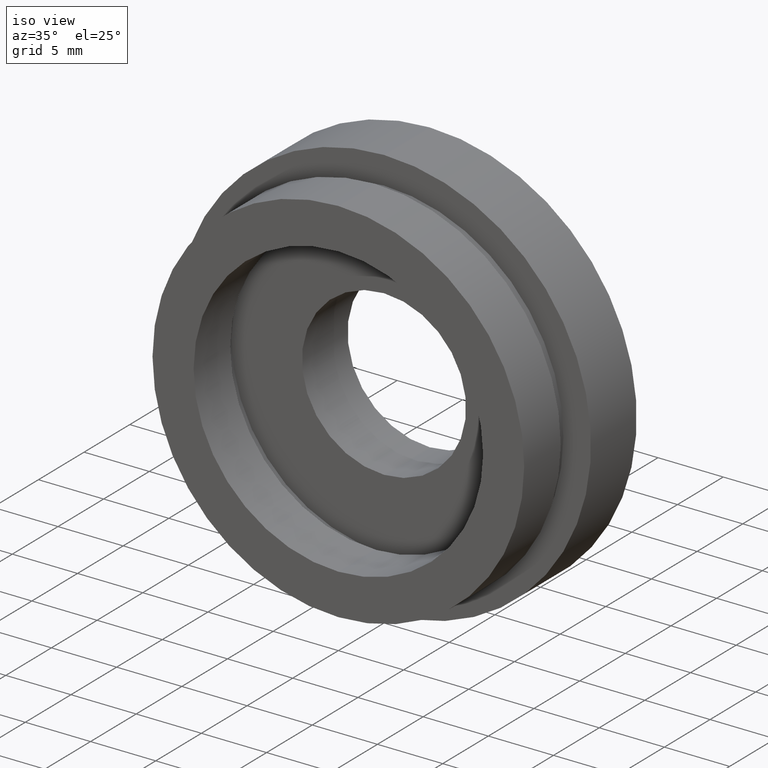
[diagram: clean part render]
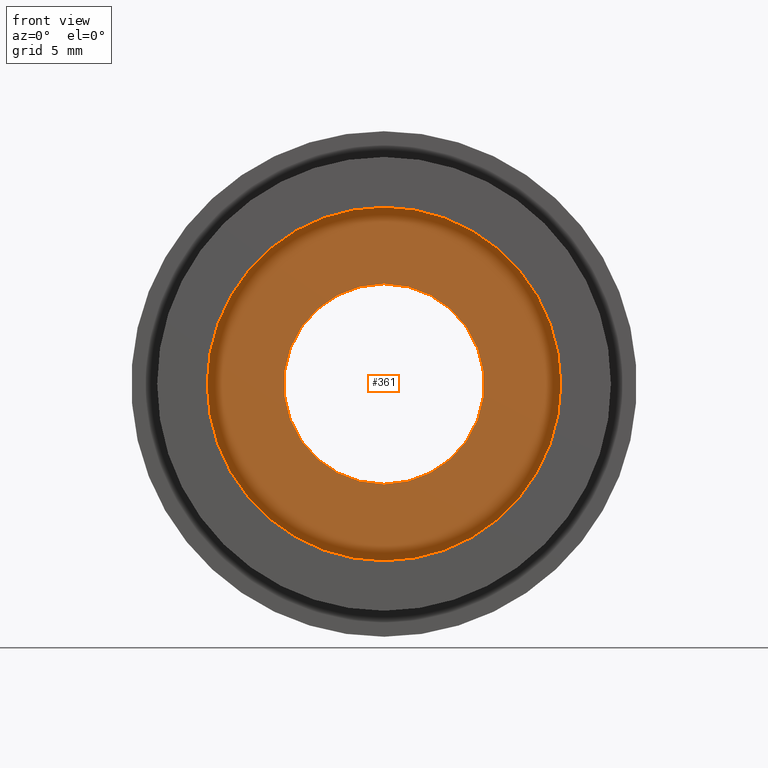
[diagram: tour spotlight — one face highlighted and labeled with its STEP entity id]
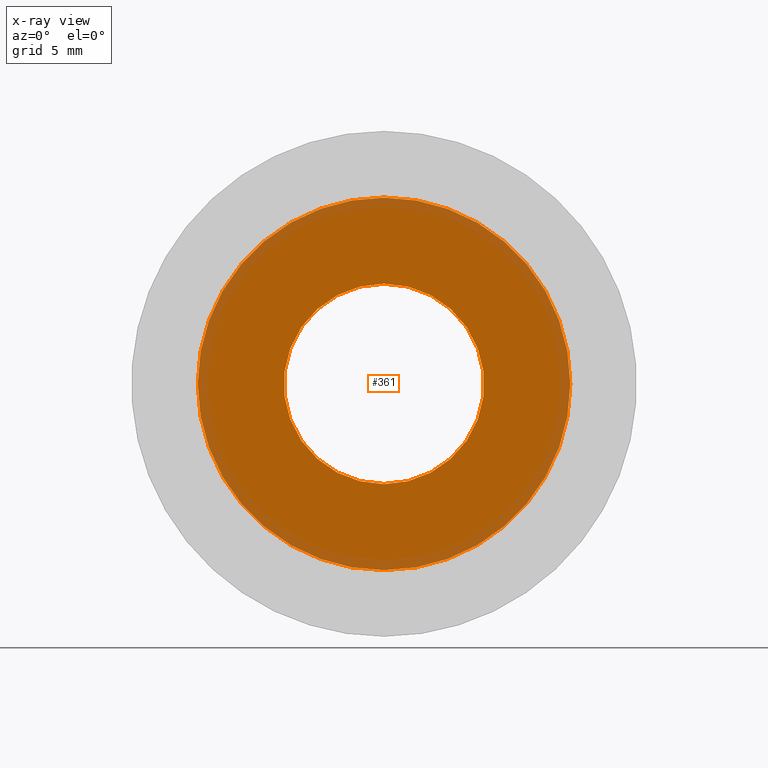
[diagram: x-ray of the same camera — body ghosted, this tour face saturated]
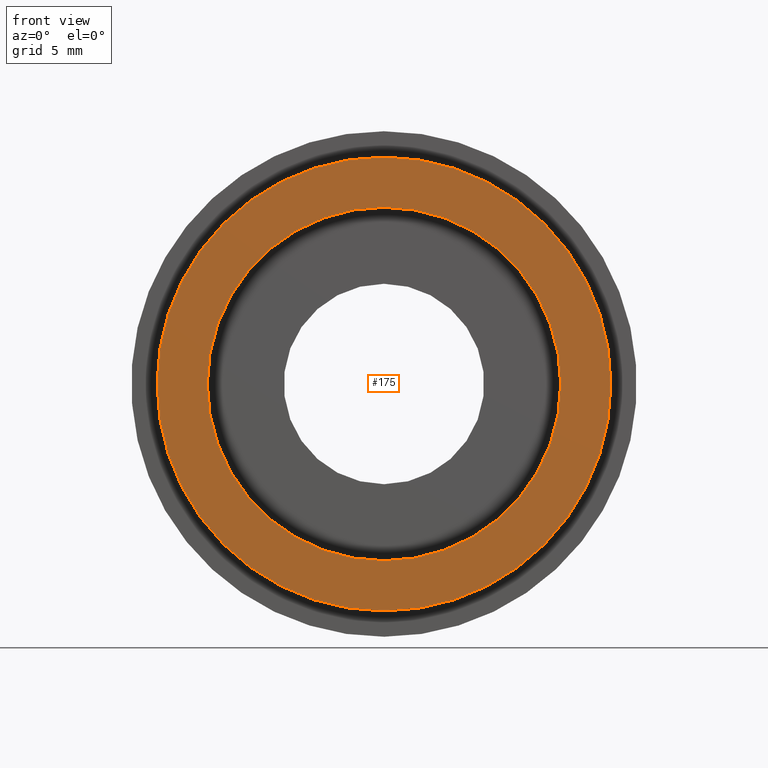
[diagram: tour spotlight — one face highlighted and labeled with its STEP entity id]
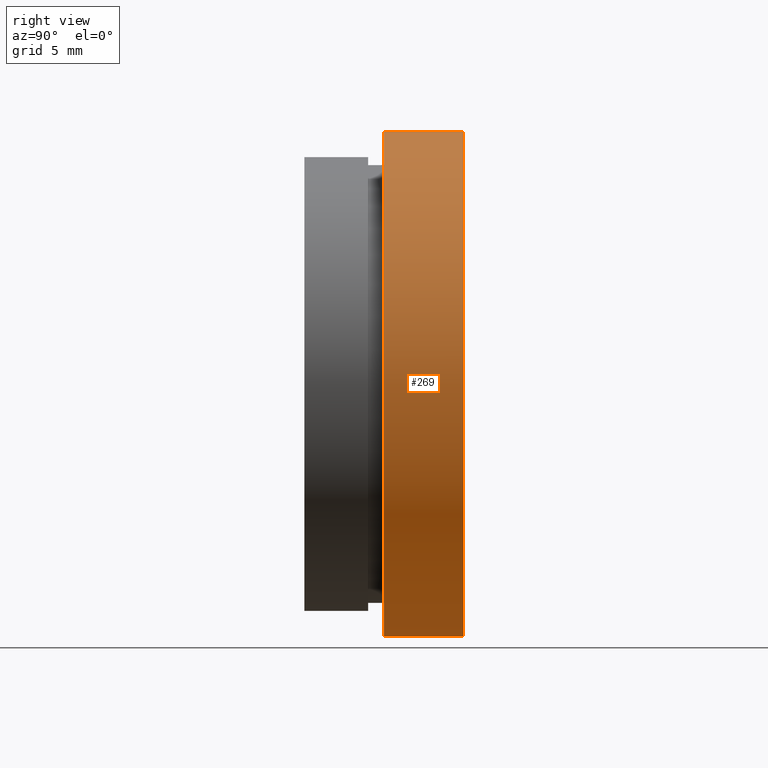
[diagram: tour spotlight — one face highlighted and labeled with its STEP entity id]
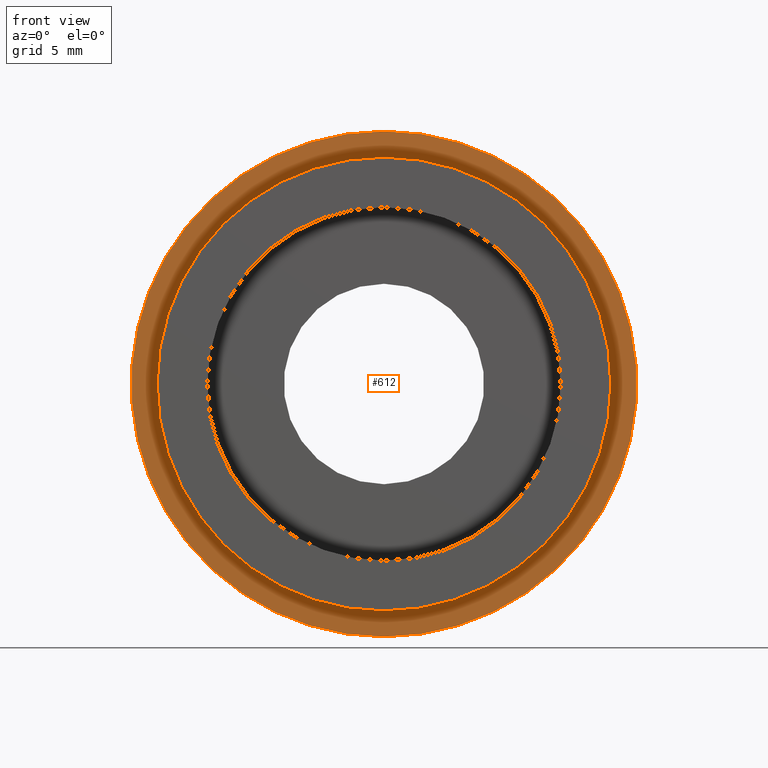
[diagram: tour spotlight — one face highlighted and labeled with its STEP entity id]
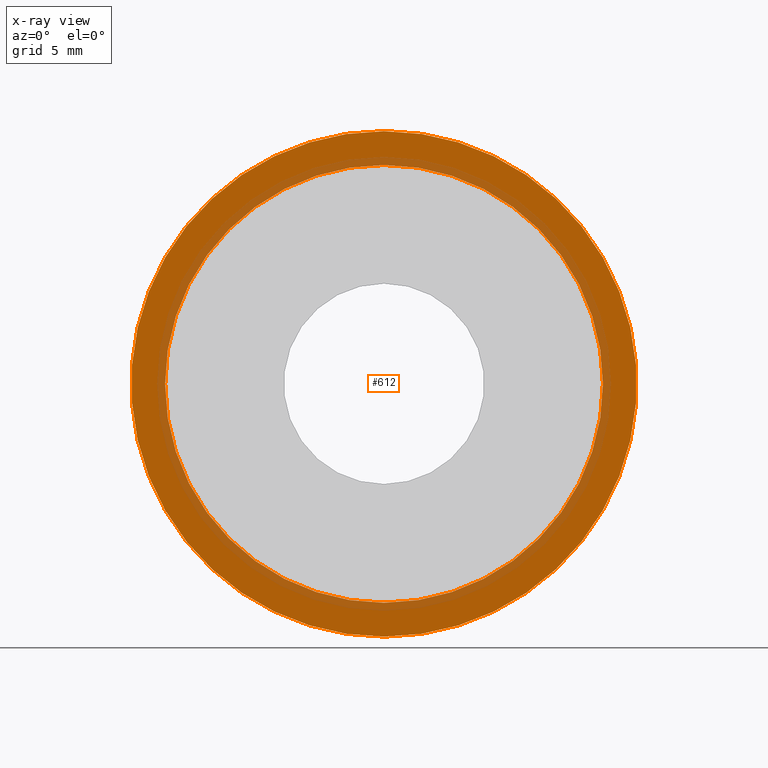
[diagram: x-ray of the same camera — body ghosted, this tour face saturated]
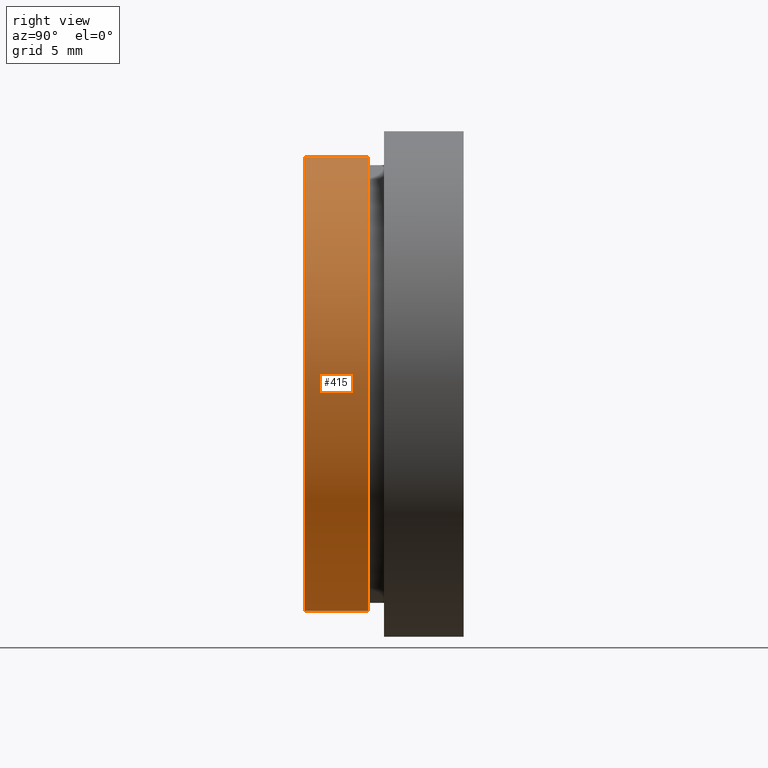
[diagram: tour spotlight — one face highlighted and labeled with its STEP entity id]
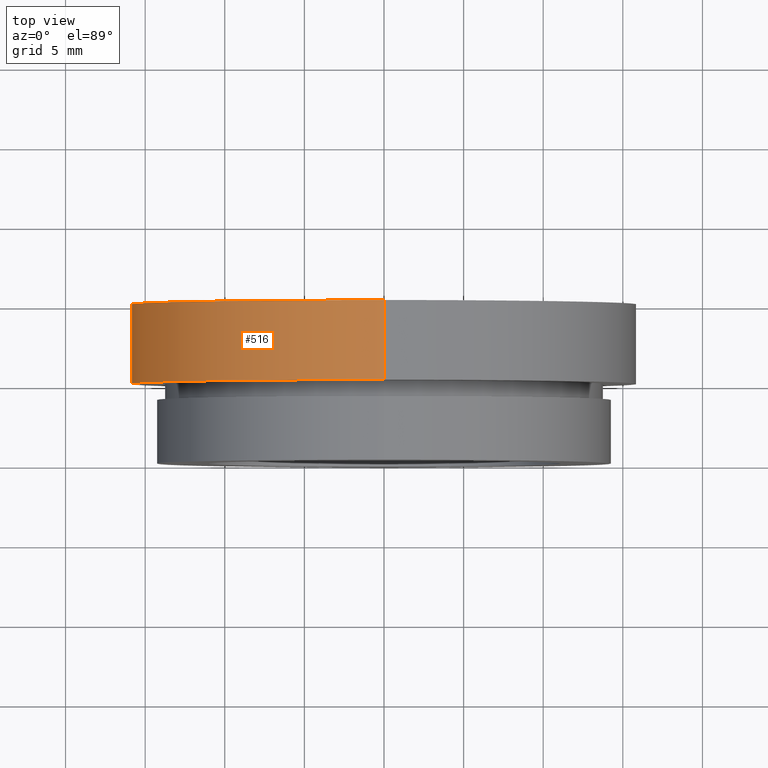
[diagram: tour spotlight — one face highlighted and labeled with its STEP entity id]
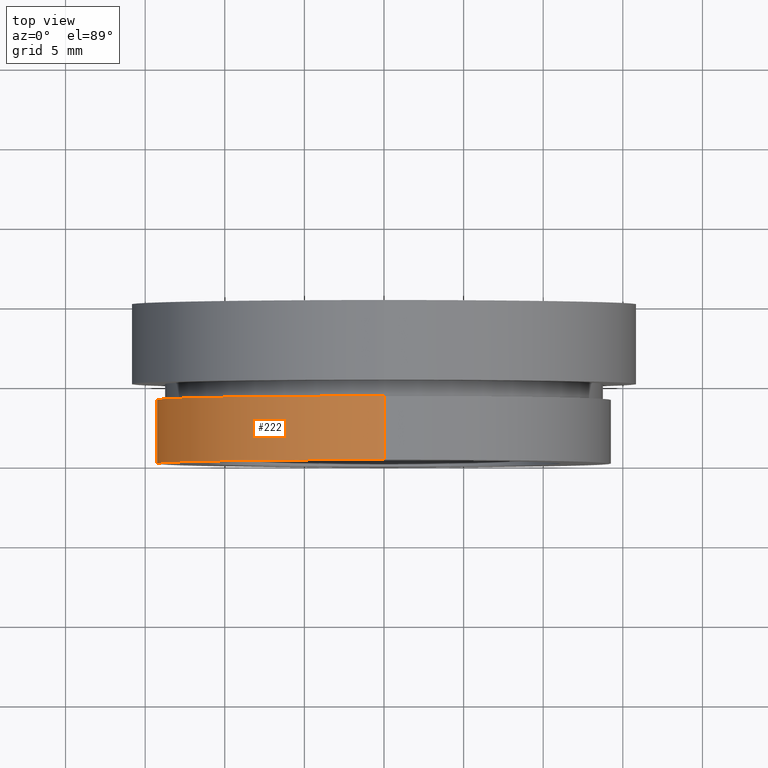
[diagram: tour spotlight — one face highlighted and labeled with its STEP entity id]
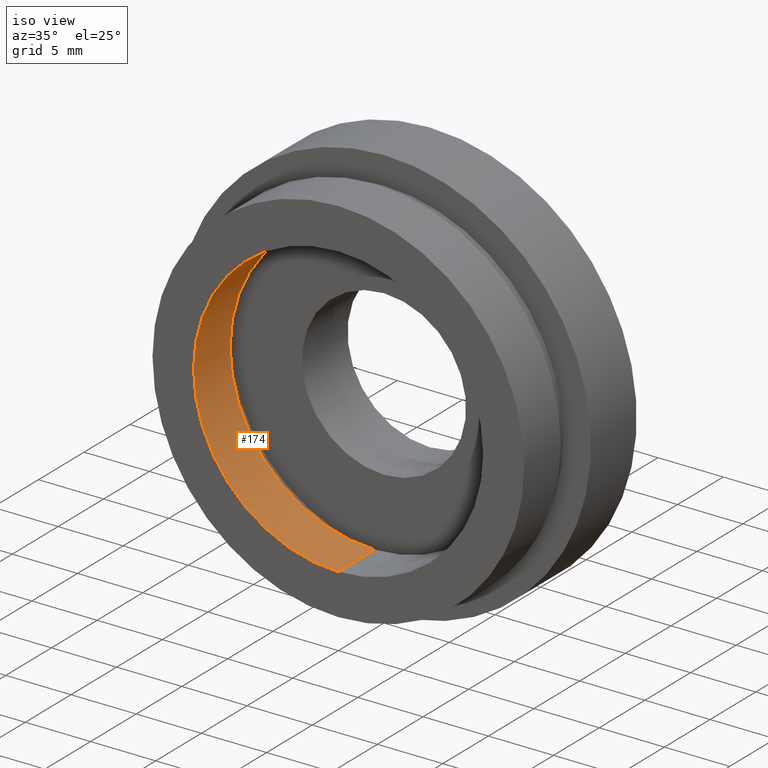
[diagram: tour spotlight — one face highlighted and labeled with its STEP entity id]
A machine part: a face-by-face anatomy tour. The part has 18 B-rep faces; the first image is the clean iso view, then the 8 largest visible faces are spotlighted one at a time (largest first), each with its STEP entity span.

Face 1 — front view, entity #361. An x-ray twin of the same camera follows (body ghosted, this face saturated) — the face is partly hidden behind the body. In plain terms, the highlighted planar face has unit normal (-0, 1, 0).
Definition (entity closure, byte-faithful):
#3 = CIRCLE ( 'NONE', #111, 11.70000000000000100 ) ;
#5 = DIRECTION ( 'NONE',  ( -0.0000000000000000000, 1.000000000000000000, -0.0000000000000000000 ) ) ;
#14 = DIRECTION ( 'NONE',  ( 0.0000000000000000000, 0.0000000000000000000, 1.000000000000000000 ) ) ;
#42 = CARTESIAN_POINT ( 'NONE',  ( 0.0000000000000000000, 5.000000000000000900, 11.70000000000000100 ) ) ;
#44 = EDGE_CURVE ( 'NONE', #279, #412, #99, .T. ) ;
#51 = DIRECTION ( 'NONE',  ( -0.0000000000000000000, 1.000000000000000000, 0.0000000000000000000 ) ) ;
#62 = CARTESIAN_POINT ( 'NONE',  ( 0.0000000000000000000, 5.000000000000000900, 0.0000000000000000000 ) ) ;
#66 = CARTESIAN_POINT ( 'NONE',  ( 1.432836755002403300E-015, 5.000000000000000900, -11.70000000000000100 ) ) ;
#74 = CARTESIAN_POINT ( 'NONE',  ( 7.709151600632590500E-016, 4.999999999999999100, -6.295000000000001700 ) ) ;
#76 = FACE_BOUND ( 'NONE', #288, .T. ) ;
#83 = AXIS2_PLACEMENT_3D ( 'NONE', #494, #156, #445 ) ;
#99 = CIRCLE ( 'NONE', #287, 11.70000000000000100 ) ;
#101 = CARTESIAN_POINT ( 'NONE',  ( 11.70000000000000100, 4.999999999999999100, 0.0000000000000000000 ) ) ;
#111 = AXIS2_PLACEMENT_3D ( 'NONE', #62, #343, #14 ) ;
#146 = VERTEX_POINT ( 'NONE', #326 ) ;
#156 = DIRECTION ( 'NONE',  ( -0.0000000000000000000, 1.000000000000000000, -0.0000000000000000000 ) ) ;
#178 = VERTEX_POINT ( 'NONE', #74 ) ;
#180 = DIRECTION ( 'NONE',  ( -0.0000000000000000000, 1.000000000000000000, -0.0000000000000000000 ) ) ;
#228 = EDGE_CURVE ( 'NONE', #178, #146, #254, .T. ) ;
#232 = DIRECTION ( 'NONE',  ( 0.0000000000000000000, 0.0000000000000000000, 1.000000000000000000 ) ) ;
#254 = CIRCLE ( 'NONE', #83, 6.295000000000001700 ) ;
#279 = VERTEX_POINT ( 'NONE', #66 ) ;
#286 = CARTESIAN_POINT ( 'NONE',  ( 0.0000000000000000000, 5.000000000000000900, 0.0000000000000000000 ) ) ;
#287 = AXIS2_PLACEMENT_3D ( 'NONE', #286, #5, #327 ) ;
#288 = EDGE_LOOP ( 'NONE', ( #342, #347 ) ) ;
#289 = CIRCLE ( 'NONE', #527, 6.295000000000001700 ) ;
#300 = EDGE_CURVE ( 'NONE', #412, #279, #3, .T. ) ;
#304 = FACE_OUTER_BOUND ( 'NONE', #451, .T. ) ;
#326 = CARTESIAN_POINT ( 'NONE',  ( 0.0000000000000000000, 4.999999999999999100, 6.295000000000001700 ) ) ;
#327 = DIRECTION ( 'NONE',  ( 0.0000000000000000000, 0.0000000000000000000, 1.000000000000000000 ) ) ;
#342 = ORIENTED_EDGE ( 'NONE', *, *, #371, .T. ) ;
#343 = DIRECTION ( 'NONE',  ( -0.0000000000000000000, 1.000000000000000000, -0.0000000000000000000 ) ) ;
#347 = ORIENTED_EDGE ( 'NONE', *, *, #228, .T. ) ;
#361 = ADVANCED_FACE ( 'NONE', ( #304, #76 ), #623, .F. ) ;
#371 = EDGE_CURVE ( 'NONE', #146, #178, #289, .T. ) ;
#412 = VERTEX_POINT ( 'NONE', #42 ) ;
#445 = DIRECTION ( 'NONE',  ( 0.0000000000000000000, 0.0000000000000000000, 1.000000000000000000 ) ) ;
#451 = EDGE_LOOP ( 'NONE', ( #466, #525 ) ) ;
#459 = AXIS2_PLACEMENT_3D ( 'NONE', #101, #51, #232 ) ;
#466 = ORIENTED_EDGE ( 'NONE', *, *, #300, .F. ) ;
#494 = CARTESIAN_POINT ( 'NONE',  ( 0.0000000000000000000, 4.999999999999999100, 0.0000000000000000000 ) ) ;
#519 = DIRECTION ( 'NONE',  ( 0.0000000000000000000, 0.0000000000000000000, 1.000000000000000000 ) ) ;
#525 = ORIENTED_EDGE ( 'NONE', *, *, #44, .F. ) ;
#527 = AXIS2_PLACEMENT_3D ( 'NONE', #567, #180, #519 ) ;
#567 = CARTESIAN_POINT ( 'NONE',  ( 0.0000000000000000000, 4.999999999999999100, 0.0000000000000000000 ) ) ;
#623 = PLANE ( 'NONE',  #459 ) ;

Face 2 — front view, entity #175. In plain terms, the highlighted planar face has unit normal (-0, 1, 0).
Definition (entity closure, byte-faithful):
#12 = DIRECTION ( 'NONE',  ( -0.0000000000000000000, 1.000000000000000000, -0.0000000000000000000 ) ) ;
#23 = CARTESIAN_POINT ( 'NONE',  ( 0.0000000000000000000, 0.0000000000000000000, 11.10000000000000100 ) ) ;
#24 = PLANE ( 'NONE',  #408 ) ;
#38 = EDGE_CURVE ( 'NONE', #225, #554, #499, .T. ) ;
#52 = DIRECTION ( 'NONE',  ( -0.0000000000000000000, 1.000000000000000000, -0.0000000000000000000 ) ) ;
#65 = EDGE_LOOP ( 'NONE', ( #609, #508 ) ) ;
#95 = CIRCLE ( 'NONE', #619, 11.10000000000000100 ) ;
#126 = CARTESIAN_POINT ( 'NONE',  ( 0.0000000000000000000, 0.0000000000000000000, 0.0000000000000000000 ) ) ;
#133 = EDGE_CURVE ( 'NONE', #213, #280, #95, .T. ) ;
#143 = ORIENTED_EDGE ( 'NONE', *, *, #600, .T. ) ;
#144 = DIRECTION ( 'NONE',  ( 0.0000000000000000000, 0.0000000000000000000, 1.000000000000000000 ) ) ;
#175 = ADVANCED_FACE ( 'NONE', ( #457, #574 ), #24, .F. ) ;
#190 = DIRECTION ( 'NONE',  ( -0.0000000000000000000, 1.000000000000000000, -0.0000000000000000000 ) ) ;
#195 = CIRCLE ( 'NONE', #359, 14.25000000000000000 ) ;
#213 = VERTEX_POINT ( 'NONE', #23 ) ;
#225 = VERTEX_POINT ( 'NONE', #253 ) ;
#253 = CARTESIAN_POINT ( 'NONE',  ( 0.0000000000000000000, 0.0000000000000000000, 14.25000000000000000 ) ) ;
#280 = VERTEX_POINT ( 'NONE', #585 ) ;
#283 = CARTESIAN_POINT ( 'NONE',  ( 0.0000000000000000000, 0.0000000000000000000, 0.0000000000000000000 ) ) ;
#290 = CARTESIAN_POINT ( 'NONE',  ( 0.0000000000000000000, 0.0000000000000000000, 0.0000000000000000000 ) ) ;
#321 = AXIS2_PLACEMENT_3D ( 'NONE', #529, #52, #575 ) ;
#330 = EDGE_CURVE ( 'NONE', #554, #225, #195, .T. ) ;
#341 = DIRECTION ( 'NONE',  ( 0.0000000000000000000, 0.0000000000000000000, 1.000000000000000000 ) ) ;
#352 = DIRECTION ( 'NONE',  ( -0.0000000000000000000, 1.000000000000000000, 0.0000000000000000000 ) ) ;
#359 = AXIS2_PLACEMENT_3D ( 'NONE', #126, #190, #483 ) ;
#374 = ORIENTED_EDGE ( 'NONE', *, *, #133, .T. ) ;
#401 = CARTESIAN_POINT ( 'NONE',  ( 14.25000000000000000, -3.918869757271531000E-016, 0.0000000000000000000 ) ) ;
#408 = AXIS2_PLACEMENT_3D ( 'NONE', #401, #352, #598 ) ;
#429 = CIRCLE ( 'NONE', #578, 11.10000000000000100 ) ;
#457 = FACE_OUTER_BOUND ( 'NONE', #65, .T. ) ;
#483 = DIRECTION ( 'NONE',  ( 0.0000000000000000000, 0.0000000000000000000, 1.000000000000000000 ) ) ;
#490 = EDGE_LOOP ( 'NONE', ( #374, #143 ) ) ;
#499 = CIRCLE ( 'NONE', #321, 14.25000000000000000 ) ;
#508 = ORIENTED_EDGE ( 'NONE', *, *, #330, .F. ) ;
#522 = CARTESIAN_POINT ( 'NONE',  ( 1.745121688784978200E-015, 0.0000000000000000000, -14.25000000000000000 ) ) ;
#529 = CARTESIAN_POINT ( 'NONE',  ( 0.0000000000000000000, 0.0000000000000000000, 0.0000000000000000000 ) ) ;
#554 = VERTEX_POINT ( 'NONE', #522 ) ;
#574 = FACE_BOUND ( 'NONE', #490, .T. ) ;
#575 = DIRECTION ( 'NONE',  ( 0.0000000000000000000, 0.0000000000000000000, 1.000000000000000000 ) ) ;
#576 = DIRECTION ( 'NONE',  ( -0.0000000000000000000, 1.000000000000000000, -0.0000000000000000000 ) ) ;
#578 = AXIS2_PLACEMENT_3D ( 'NONE', #290, #12, #341 ) ;
#585 = CARTESIAN_POINT ( 'NONE',  ( 1.359357947053562400E-015, 0.0000000000000000000, -11.10000000000000100 ) ) ;
#598 = DIRECTION ( 'NONE',  ( 0.0000000000000000000, 0.0000000000000000000, 1.000000000000000000 ) ) ;
#600 = EDGE_CURVE ( 'NONE', #280, #213, #429, .T. ) ;
#609 = ORIENTED_EDGE ( 'NONE', *, *, #38, .F. ) ;
#619 = AXIS2_PLACEMENT_3D ( 'NONE', #283, #576, #144 ) ;

Face 3 — right view, entity #269. In plain terms, the highlighted cylindrical surface (partial cylindrical patch) has radius 15.875 mm, axis along (-0, 1, -0).
Definition (entity closure, byte-faithful):
#1 = AXIS2_PLACEMENT_3D ( 'NONE', #564, #272, #518 ) ;
#18 = DIRECTION ( 'NONE',  ( -0.0000000000000000000, 1.000000000000000000, -0.0000000000000000000 ) ) ;
#56 = DIRECTION ( 'NONE',  ( -0.0000000000000000000, 1.000000000000000000, -0.0000000000000000000 ) ) ;
#58 = CIRCLE ( 'NONE', #1, 15.87500000000000000 ) ;
#70 = CARTESIAN_POINT ( 'NONE',  ( 1.944126793646423200E-015, 10.00000000000000000, -15.87500000000000000 ) ) ;
#93 = CIRCLE ( 'NONE', #315, 15.87500000000000000 ) ;
#100 = EDGE_CURVE ( 'NONE', #571, #183, #469, .T. ) ;
#145 = FACE_OUTER_BOUND ( 'NONE', #433, .T. ) ;
#147 = DIRECTION ( 'NONE',  ( -0.0000000000000000000, 1.000000000000000000, -0.0000000000000000000 ) ) ;
#158 = ORIENTED_EDGE ( 'NONE', *, *, #100, .F. ) ;
#163 = EDGE_CURVE ( 'NONE', #624, #259, #390, .T. ) ;
#172 = AXIS2_PLACEMENT_3D ( 'NONE', #544, #18, #206 ) ;
#183 = VERTEX_POINT ( 'NONE', #212 ) ;
#206 = DIRECTION ( 'NONE',  ( 0.0000000000000000000, 0.0000000000000000000, 1.000000000000000000 ) ) ;
#212 = CARTESIAN_POINT ( 'NONE',  ( 0.0000000000000000000, 10.00000000000000000, 15.87500000000000000 ) ) ;
#249 = VECTOR ( 'NONE', #56, 1000.000000000000000 ) ;
#259 = VERTEX_POINT ( 'NONE', #70 ) ;
#262 = VECTOR ( 'NONE', #147, 1000.000000000000000 ) ;
#264 = ORIENTED_EDGE ( 'NONE', *, *, #502, .F. ) ;
#269 = ADVANCED_FACE ( 'NONE', ( #145 ), #366, .T. ) ;
#272 = DIRECTION ( 'NONE',  ( -0.0000000000000000000, 1.000000000000000000, -0.0000000000000000000 ) ) ;
#284 = CARTESIAN_POINT ( 'NONE',  ( 0.0000000000000000000, 13.74468085106383300, 15.87500000000000000 ) ) ;
#292 = CARTESIAN_POINT ( 'NONE',  ( 1.944126793646423200E-015, 5.000000000000000900, -15.87500000000000000 ) ) ;
#315 = AXIS2_PLACEMENT_3D ( 'NONE', #376, #524, #570 ) ;
#366 = CYLINDRICAL_SURFACE ( 'NONE', #172, 15.87500000000000000 ) ;
#376 = CARTESIAN_POINT ( 'NONE',  ( 0.0000000000000000000, 10.00000000000000000, 0.0000000000000000000 ) ) ;
#390 = LINE ( 'NONE', #507, #262 ) ;
#403 = EDGE_CURVE ( 'NONE', #571, #624, #58, .T. ) ;
#433 = EDGE_LOOP ( 'NONE', ( #473, #594, #264, #158 ) ) ;
#469 = LINE ( 'NONE', #284, #249 ) ;
#473 = ORIENTED_EDGE ( 'NONE', *, *, #403, .T. ) ;
#502 = EDGE_CURVE ( 'NONE', #183, #259, #93, .T. ) ;
#507 = CARTESIAN_POINT ( 'NONE',  ( 1.944126793646423200E-015, 13.74468085106383300, -15.87500000000000000 ) ) ;
#518 = DIRECTION ( 'NONE',  ( 0.0000000000000000000, 0.0000000000000000000, 1.000000000000000000 ) ) ;
#524 = DIRECTION ( 'NONE',  ( -0.0000000000000000000, 1.000000000000000000, -0.0000000000000000000 ) ) ;
#544 = CARTESIAN_POINT ( 'NONE',  ( 0.0000000000000000000, 13.74468085106383300, 0.0000000000000000000 ) ) ;
#564 = CARTESIAN_POINT ( 'NONE',  ( 0.0000000000000000000, 5.000000000000000900, 0.0000000000000000000 ) ) ;
#569 = CARTESIAN_POINT ( 'NONE',  ( 0.0000000000000000000, 5.000000000000000900, 15.87500000000000000 ) ) ;
#570 = DIRECTION ( 'NONE',  ( 0.0000000000000000000, 0.0000000000000000000, 1.000000000000000000 ) ) ;
#571 = VERTEX_POINT ( 'NONE', #569 ) ;
#594 = ORIENTED_EDGE ( 'NONE', *, *, #163, .T. ) ;
#624 = VERTEX_POINT ( 'NONE', #292 ) ;

Face 4 — front view, entity #612. An x-ray twin of the same camera follows (body ghosted, this face saturated) — the face is partly hidden behind the body. In plain terms, the highlighted planar face has unit normal (-0, 1, 0).
Definition (entity closure, byte-faithful):
#1 = AXIS2_PLACEMENT_3D ( 'NONE', #564, #272, #518 ) ;
#7 = DIRECTION ( 'NONE',  ( -0.0000000000000000000, 1.000000000000000000, -0.0000000000000000000 ) ) ;
#10 = CARTESIAN_POINT ( 'NONE',  ( 0.0000000000000000000, 5.000000000000000900, 13.75000000000000000 ) ) ;
#27 = VERTEX_POINT ( 'NONE', #10 ) ;
#58 = CIRCLE ( 'NONE', #1, 15.87500000000000000 ) ;
#64 = DIRECTION ( 'NONE',  ( 0.0000000000000000000, 0.0000000000000000000, 1.000000000000000000 ) ) ;
#78 = EDGE_CURVE ( 'NONE', #624, #571, #337, .T. ) ;
#98 = DIRECTION ( 'NONE',  ( -0.0000000000000000000, 1.000000000000000000, -0.0000000000000000000 ) ) ;
#136 = EDGE_CURVE ( 'NONE', #526, #27, #461, .T. ) ;
#211 = ORIENTED_EDGE ( 'NONE', *, *, #136, .T. ) ;
#215 = AXIS2_PLACEMENT_3D ( 'NONE', #583, #240, #64 ) ;
#229 = EDGE_LOOP ( 'NONE', ( #582, #211 ) ) ;
#240 = DIRECTION ( 'NONE',  ( -0.0000000000000000000, 1.000000000000000000, 0.0000000000000000000 ) ) ;
#272 = DIRECTION ( 'NONE',  ( -0.0000000000000000000, 1.000000000000000000, -0.0000000000000000000 ) ) ;
#273 = ORIENTED_EDGE ( 'NONE', *, *, #403, .F. ) ;
#276 = ORIENTED_EDGE ( 'NONE', *, *, #78, .F. ) ;
#285 = DIRECTION ( 'NONE',  ( 0.0000000000000000000, 0.0000000000000000000, 1.000000000000000000 ) ) ;
#292 = CARTESIAN_POINT ( 'NONE',  ( 1.944126793646423200E-015, 5.000000000000000900, -15.87500000000000000 ) ) ;
#305 = DIRECTION ( 'NONE',  ( -0.0000000000000000000, 1.000000000000000000, -0.0000000000000000000 ) ) ;
#333 = CARTESIAN_POINT ( 'NONE',  ( 0.0000000000000000000, 5.000000000000000900, 0.0000000000000000000 ) ) ;
#334 = DIRECTION ( 'NONE',  ( 0.0000000000000000000, 0.0000000000000000000, 1.000000000000000000 ) ) ;
#337 = CIRCLE ( 'NONE', #386, 15.87500000000000000 ) ;
#345 = PLANE ( 'NONE',  #215 ) ;
#364 = FACE_BOUND ( 'NONE', #229, .T. ) ;
#382 = AXIS2_PLACEMENT_3D ( 'NONE', #333, #7, #285 ) ;
#386 = AXIS2_PLACEMENT_3D ( 'NONE', #484, #98, #334 ) ;
#398 = DIRECTION ( 'NONE',  ( 0.0000000000000000000, 0.0000000000000000000, 1.000000000000000000 ) ) ;
#402 = EDGE_LOOP ( 'NONE', ( #273, #276 ) ) ;
#403 = EDGE_CURVE ( 'NONE', #571, #624, #58, .T. ) ;
#461 = CIRCLE ( 'NONE', #579, 13.75000000000000000 ) ;
#471 = CARTESIAN_POINT ( 'NONE',  ( 1.683889348827610700E-015, 5.000000000000000900, -13.75000000000000000 ) ) ;
#484 = CARTESIAN_POINT ( 'NONE',  ( 0.0000000000000000000, 5.000000000000000900, 0.0000000000000000000 ) ) ;
#497 = FACE_OUTER_BOUND ( 'NONE', #402, .T. ) ;
#518 = DIRECTION ( 'NONE',  ( 0.0000000000000000000, 0.0000000000000000000, 1.000000000000000000 ) ) ;
#526 = VERTEX_POINT ( 'NONE', #471 ) ;
#555 = CARTESIAN_POINT ( 'NONE',  ( 0.0000000000000000000, 5.000000000000000900, 0.0000000000000000000 ) ) ;
#557 = CIRCLE ( 'NONE', #382, 13.75000000000000000 ) ;
#564 = CARTESIAN_POINT ( 'NONE',  ( 0.0000000000000000000, 5.000000000000000900, 0.0000000000000000000 ) ) ;
#568 = EDGE_CURVE ( 'NONE', #27, #526, #557, .T. ) ;
#569 = CARTESIAN_POINT ( 'NONE',  ( 0.0000000000000000000, 5.000000000000000900, 15.87500000000000000 ) ) ;
#571 = VERTEX_POINT ( 'NONE', #569 ) ;
#579 = AXIS2_PLACEMENT_3D ( 'NONE', #555, #305, #398 ) ;
#582 = ORIENTED_EDGE ( 'NONE', *, *, #568, .T. ) ;
#583 = CARTESIAN_POINT ( 'NONE',  ( 15.87500000000000000, 5.000000000000000000, 0.0000000000000000000 ) ) ;
#612 = ADVANCED_FACE ( 'NONE', ( #497, #364 ), #345, .F. ) ;
#624 = VERTEX_POINT ( 'NONE', #292 ) ;

Face 5 — right view, entity #415. In plain terms, the highlighted cylindrical surface (partial cylindrical patch) has radius 14.25 mm, axis along (-0, 1, -0).
Definition (entity closure, byte-faithful):
#19 = VERTEX_POINT ( 'NONE', #339 ) ;
#35 = DIRECTION ( 'NONE',  ( -0.0000000000000000000, 1.000000000000000000, -0.0000000000000000000 ) ) ;
#38 = EDGE_CURVE ( 'NONE', #225, #554, #499, .T. ) ;
#52 = DIRECTION ( 'NONE',  ( -0.0000000000000000000, 1.000000000000000000, -0.0000000000000000000 ) ) ;
#54 = EDGE_LOOP ( 'NONE', ( #309, #97, #496, #521 ) ) ;
#67 = VECTOR ( 'NONE', #422, 1000.000000000000000 ) ;
#90 = DIRECTION ( 'NONE',  ( 0.0000000000000000000, 0.0000000000000000000, 1.000000000000000000 ) ) ;
#97 = ORIENTED_EDGE ( 'NONE', *, *, #532, .T. ) ;
#134 = CARTESIAN_POINT ( 'NONE',  ( 1.745121688784978200E-015, 13.74468085106383300, -14.25000000000000000 ) ) ;
#166 = FACE_OUTER_BOUND ( 'NONE', #54, .T. ) ;
#219 = LINE ( 'NONE', #424, #491 ) ;
#225 = VERTEX_POINT ( 'NONE', #253 ) ;
#227 = CARTESIAN_POINT ( 'NONE',  ( 1.745121688784978200E-015, 4.000000000000000000, -14.25000000000000000 ) ) ;
#253 = CARTESIAN_POINT ( 'NONE',  ( 0.0000000000000000000, 0.0000000000000000000, 14.25000000000000000 ) ) ;
#256 = AXIS2_PLACEMENT_3D ( 'NONE', #467, #417, #363 ) ;
#309 = ORIENTED_EDGE ( 'NONE', *, *, #38, .T. ) ;
#321 = AXIS2_PLACEMENT_3D ( 'NONE', #529, #52, #575 ) ;
#324 = LINE ( 'NONE', #134, #67 ) ;
#339 = CARTESIAN_POINT ( 'NONE',  ( 0.0000000000000000000, 4.000000000000000000, 14.25000000000000000 ) ) ;
#363 = DIRECTION ( 'NONE',  ( 0.0000000000000000000, 0.0000000000000000000, 1.000000000000000000 ) ) ;
#370 = DIRECTION ( 'NONE',  ( -0.0000000000000000000, 1.000000000000000000, -0.0000000000000000000 ) ) ;
#396 = VERTEX_POINT ( 'NONE', #227 ) ;
#399 = EDGE_CURVE ( 'NONE', #19, #396, #552, .T. ) ;
#415 = ADVANCED_FACE ( 'NONE', ( #166 ), #603, .T. ) ;
#417 = DIRECTION ( 'NONE',  ( -0.0000000000000000000, 1.000000000000000000, -0.0000000000000000000 ) ) ;
#418 = CARTESIAN_POINT ( 'NONE',  ( 0.0000000000000000000, 4.000000000000000000, 0.0000000000000000000 ) ) ;
#422 = DIRECTION ( 'NONE',  ( -0.0000000000000000000, 1.000000000000000000, -0.0000000000000000000 ) ) ;
#424 = CARTESIAN_POINT ( 'NONE',  ( 0.0000000000000000000, 13.74468085106383300, 14.25000000000000000 ) ) ;
#465 = EDGE_CURVE ( 'NONE', #225, #19, #219, .T. ) ;
#467 = CARTESIAN_POINT ( 'NONE',  ( 0.0000000000000000000, 13.74468085106383300, 0.0000000000000000000 ) ) ;
#491 = VECTOR ( 'NONE', #35, 1000.000000000000000 ) ;
#496 = ORIENTED_EDGE ( 'NONE', *, *, #399, .F. ) ;
#499 = CIRCLE ( 'NONE', #321, 14.25000000000000000 ) ;
#521 = ORIENTED_EDGE ( 'NONE', *, *, #465, .F. ) ;
#522 = CARTESIAN_POINT ( 'NONE',  ( 1.745121688784978200E-015, 0.0000000000000000000, -14.25000000000000000 ) ) ;
#529 = CARTESIAN_POINT ( 'NONE',  ( 0.0000000000000000000, 0.0000000000000000000, 0.0000000000000000000 ) ) ;
#532 = EDGE_CURVE ( 'NONE', #554, #396, #324, .T. ) ;
#552 = CIRCLE ( 'NONE', #592, 14.25000000000000000 ) ;
#554 = VERTEX_POINT ( 'NONE', #522 ) ;
#575 = DIRECTION ( 'NONE',  ( 0.0000000000000000000, 0.0000000000000000000, 1.000000000000000000 ) ) ;
#592 = AXIS2_PLACEMENT_3D ( 'NONE', #418, #370, #90 ) ;
#603 = CYLINDRICAL_SURFACE ( 'NONE', #256, 14.25000000000000000 ) ;

Face 6 — top view, entity #516. In plain terms, the highlighted cylindrical surface (partial cylindrical patch) has radius 15.875 mm, axis along (-0, 1, -0).
Definition (entity closure, byte-faithful):
#9 = EDGE_CURVE ( 'NONE', #259, #183, #117, .T. ) ;
#31 = ORIENTED_EDGE ( 'NONE', *, *, #100, .T. ) ;
#56 = DIRECTION ( 'NONE',  ( -0.0000000000000000000, 1.000000000000000000, -0.0000000000000000000 ) ) ;
#70 = CARTESIAN_POINT ( 'NONE',  ( 1.944126793646423200E-015, 10.00000000000000000, -15.87500000000000000 ) ) ;
#78 = EDGE_CURVE ( 'NONE', #624, #571, #337, .T. ) ;
#81 = ORIENTED_EDGE ( 'NONE', *, *, #163, .F. ) ;
#98 = DIRECTION ( 'NONE',  ( -0.0000000000000000000, 1.000000000000000000, -0.0000000000000000000 ) ) ;
#100 = EDGE_CURVE ( 'NONE', #571, #183, #469, .T. ) ;
#117 = CIRCLE ( 'NONE', #257, 15.87500000000000000 ) ;
#147 = DIRECTION ( 'NONE',  ( -0.0000000000000000000, 1.000000000000000000, -0.0000000000000000000 ) ) ;
#163 = EDGE_CURVE ( 'NONE', #624, #259, #390, .T. ) ;
#177 = DIRECTION ( 'NONE',  ( -0.0000000000000000000, 1.000000000000000000, -0.0000000000000000000 ) ) ;
#183 = VERTEX_POINT ( 'NONE', #212 ) ;
#186 = CYLINDRICAL_SURFACE ( 'NONE', #450, 15.87500000000000000 ) ;
#212 = CARTESIAN_POINT ( 'NONE',  ( 0.0000000000000000000, 10.00000000000000000, 15.87500000000000000 ) ) ;
#235 = CARTESIAN_POINT ( 'NONE',  ( 0.0000000000000000000, 13.74468085106383300, 0.0000000000000000000 ) ) ;
#249 = VECTOR ( 'NONE', #56, 1000.000000000000000 ) ;
#252 = ORIENTED_EDGE ( 'NONE', *, *, #9, .F. ) ;
#257 = AXIS2_PLACEMENT_3D ( 'NONE', #423, #177, #425 ) ;
#259 = VERTEX_POINT ( 'NONE', #70 ) ;
#262 = VECTOR ( 'NONE', #147, 1000.000000000000000 ) ;
#284 = CARTESIAN_POINT ( 'NONE',  ( 0.0000000000000000000, 13.74468085106383300, 15.87500000000000000 ) ) ;
#292 = CARTESIAN_POINT ( 'NONE',  ( 1.944126793646423200E-015, 5.000000000000000900, -15.87500000000000000 ) ) ;
#311 = DIRECTION ( 'NONE',  ( 0.0000000000000000000, 0.0000000000000000000, 1.000000000000000000 ) ) ;
#332 = ORIENTED_EDGE ( 'NONE', *, *, #78, .T. ) ;
#334 = DIRECTION ( 'NONE',  ( 0.0000000000000000000, 0.0000000000000000000, 1.000000000000000000 ) ) ;
#337 = CIRCLE ( 'NONE', #386, 15.87500000000000000 ) ;
#386 = AXIS2_PLACEMENT_3D ( 'NONE', #484, #98, #334 ) ;
#390 = LINE ( 'NONE', #507, #262 ) ;
#423 = CARTESIAN_POINT ( 'NONE',  ( 0.0000000000000000000, 10.00000000000000000, 0.0000000000000000000 ) ) ;
#425 = DIRECTION ( 'NONE',  ( 0.0000000000000000000, 0.0000000000000000000, 1.000000000000000000 ) ) ;
#428 = EDGE_LOOP ( 'NONE', ( #81, #332, #31, #252 ) ) ;
#444 = FACE_OUTER_BOUND ( 'NONE', #428, .T. ) ;
#450 = AXIS2_PLACEMENT_3D ( 'NONE', #235, #513, #311 ) ;
#469 = LINE ( 'NONE', #284, #249 ) ;
#484 = CARTESIAN_POINT ( 'NONE',  ( 0.0000000000000000000, 5.000000000000000900, 0.0000000000000000000 ) ) ;
#507 = CARTESIAN_POINT ( 'NONE',  ( 1.944126793646423200E-015, 13.74468085106383300, -15.87500000000000000 ) ) ;
#513 = DIRECTION ( 'NONE',  ( -0.0000000000000000000, 1.000000000000000000, -0.0000000000000000000 ) ) ;
#516 = ADVANCED_FACE ( 'NONE', ( #444 ), #186, .T. ) ;
#569 = CARTESIAN_POINT ( 'NONE',  ( 0.0000000000000000000, 5.000000000000000900, 15.87500000000000000 ) ) ;
#571 = VERTEX_POINT ( 'NONE', #569 ) ;
#624 = VERTEX_POINT ( 'NONE', #292 ) ;

Face 7 — top view, entity #222. In plain terms, the highlighted cylindrical surface (partial cylindrical patch) has radius 14.25 mm, axis along (-0, 1, -0).
Definition (entity closure, byte-faithful):
#16 = AXIS2_PLACEMENT_3D ( 'NONE', #21, #348, #299 ) ;
#19 = VERTEX_POINT ( 'NONE', #339 ) ;
#21 = CARTESIAN_POINT ( 'NONE',  ( 0.0000000000000000000, 13.74468085106383300, 0.0000000000000000000 ) ) ;
#35 = DIRECTION ( 'NONE',  ( -0.0000000000000000000, 1.000000000000000000, -0.0000000000000000000 ) ) ;
#49 = ORIENTED_EDGE ( 'NONE', *, *, #270, .F. ) ;
#67 = VECTOR ( 'NONE', #422, 1000.000000000000000 ) ;
#94 = ORIENTED_EDGE ( 'NONE', *, *, #465, .T. ) ;
#126 = CARTESIAN_POINT ( 'NONE',  ( 0.0000000000000000000, 0.0000000000000000000, 0.0000000000000000000 ) ) ;
#134 = CARTESIAN_POINT ( 'NONE',  ( 1.745121688784978200E-015, 13.74468085106383300, -14.25000000000000000 ) ) ;
#140 = AXIS2_PLACEMENT_3D ( 'NONE', #248, #539, #202 ) ;
#187 = FACE_OUTER_BOUND ( 'NONE', #577, .T. ) ;
#190 = DIRECTION ( 'NONE',  ( -0.0000000000000000000, 1.000000000000000000, -0.0000000000000000000 ) ) ;
#195 = CIRCLE ( 'NONE', #359, 14.25000000000000000 ) ;
#202 = DIRECTION ( 'NONE',  ( 0.0000000000000000000, 0.0000000000000000000, 1.000000000000000000 ) ) ;
#219 = LINE ( 'NONE', #424, #491 ) ;
#222 = ADVANCED_FACE ( 'NONE', ( #187 ), #515, .T. ) ;
#225 = VERTEX_POINT ( 'NONE', #253 ) ;
#227 = CARTESIAN_POINT ( 'NONE',  ( 1.745121688784978200E-015, 4.000000000000000000, -14.25000000000000000 ) ) ;
#248 = CARTESIAN_POINT ( 'NONE',  ( 0.0000000000000000000, 4.000000000000000000, 0.0000000000000000000 ) ) ;
#253 = CARTESIAN_POINT ( 'NONE',  ( 0.0000000000000000000, 0.0000000000000000000, 14.25000000000000000 ) ) ;
#270 = EDGE_CURVE ( 'NONE', #396, #19, #501, .T. ) ;
#299 = DIRECTION ( 'NONE',  ( 0.0000000000000000000, 0.0000000000000000000, 1.000000000000000000 ) ) ;
#324 = LINE ( 'NONE', #134, #67 ) ;
#330 = EDGE_CURVE ( 'NONE', #554, #225, #195, .T. ) ;
#339 = CARTESIAN_POINT ( 'NONE',  ( 0.0000000000000000000, 4.000000000000000000, 14.25000000000000000 ) ) ;
#340 = ORIENTED_EDGE ( 'NONE', *, *, #330, .T. ) ;
#348 = DIRECTION ( 'NONE',  ( -0.0000000000000000000, 1.000000000000000000, -0.0000000000000000000 ) ) ;
#359 = AXIS2_PLACEMENT_3D ( 'NONE', #126, #190, #483 ) ;
#396 = VERTEX_POINT ( 'NONE', #227 ) ;
#422 = DIRECTION ( 'NONE',  ( -0.0000000000000000000, 1.000000000000000000, -0.0000000000000000000 ) ) ;
#424 = CARTESIAN_POINT ( 'NONE',  ( 0.0000000000000000000, 13.74468085106383300, 14.25000000000000000 ) ) ;
#465 = EDGE_CURVE ( 'NONE', #225, #19, #219, .T. ) ;
#483 = DIRECTION ( 'NONE',  ( 0.0000000000000000000, 0.0000000000000000000, 1.000000000000000000 ) ) ;
#491 = VECTOR ( 'NONE', #35, 1000.000000000000000 ) ;
#501 = CIRCLE ( 'NONE', #140, 14.25000000000000000 ) ;
#515 = CYLINDRICAL_SURFACE ( 'NONE', #16, 14.25000000000000000 ) ;
#522 = CARTESIAN_POINT ( 'NONE',  ( 1.745121688784978200E-015, 0.0000000000000000000, -14.25000000000000000 ) ) ;
#532 = EDGE_CURVE ( 'NONE', #554, #396, #324, .T. ) ;
#539 = DIRECTION ( 'NONE',  ( -0.0000000000000000000, 1.000000000000000000, -0.0000000000000000000 ) ) ;
#554 = VERTEX_POINT ( 'NONE', #522 ) ;
#577 = EDGE_LOOP ( 'NONE', ( #602, #340, #94, #49 ) ) ;
#602 = ORIENTED_EDGE ( 'NONE', *, *, #532, .F. ) ;

Face 8 — iso view, entity #174. In plain terms, the highlighted cylindrical surface (partial cylindrical patch) has radius 11.1 mm, axis along (-0, 1, -0).
Definition (entity closure, byte-faithful):
#12 = DIRECTION ( 'NONE',  ( -0.0000000000000000000, 1.000000000000000000, -0.0000000000000000000 ) ) ;
#23 = CARTESIAN_POINT ( 'NONE',  ( 0.0000000000000000000, 0.0000000000000000000, 11.10000000000000100 ) ) ;
#47 = ORIENTED_EDGE ( 'NONE', *, *, #73, .T. ) ;
#53 = DIRECTION ( 'NONE',  ( -0.0000000000000000000, 1.000000000000000000, -0.0000000000000000000 ) ) ;
#73 = EDGE_CURVE ( 'NONE', #280, #184, #104, .T. ) ;
#84 = CYLINDRICAL_SURFACE ( 'NONE', #378, 11.10000000000000100 ) ;
#104 = LINE ( 'NONE', #191, #615 ) ;
#119 = DIRECTION ( 'NONE',  ( -0.0000000000000000000, 1.000000000000000000, -0.0000000000000000000 ) ) ;
#120 = DIRECTION ( 'NONE',  ( 0.0000000000000000000, 0.0000000000000000000, 1.000000000000000000 ) ) ;
#174 = ADVANCED_FACE ( 'NONE', ( #523 ), #84, .F. ) ;
#184 = VERTEX_POINT ( 'NONE', #503 ) ;
#191 = CARTESIAN_POINT ( 'NONE',  ( 1.359357947053562400E-015, 13.74468085106383300, -11.10000000000000100 ) ) ;
#196 = EDGE_CURVE ( 'NONE', #213, #200, #205, .T. ) ;
#200 = VERTEX_POINT ( 'NONE', #400 ) ;
#205 = LINE ( 'NONE', #449, #325 ) ;
#213 = VERTEX_POINT ( 'NONE', #23 ) ;
#226 = EDGE_CURVE ( 'NONE', #184, #200, #268, .T. ) ;
#250 = DIRECTION ( 'NONE',  ( 0.0000000000000000000, 0.0000000000000000000, 1.000000000000000000 ) ) ;
#268 = CIRCLE ( 'NONE', #572, 11.10000000000000100 ) ;
#280 = VERTEX_POINT ( 'NONE', #585 ) ;
#290 = CARTESIAN_POINT ( 'NONE',  ( 0.0000000000000000000, 0.0000000000000000000, 0.0000000000000000000 ) ) ;
#297 = CARTESIAN_POINT ( 'NONE',  ( 0.0000000000000000000, 4.000000000000000000, 0.0000000000000000000 ) ) ;
#310 = EDGE_LOOP ( 'NONE', ( #317, #47, #323, #596 ) ) ;
#317 = ORIENTED_EDGE ( 'NONE', *, *, #600, .F. ) ;
#323 = ORIENTED_EDGE ( 'NONE', *, *, #226, .T. ) ;
#325 = VECTOR ( 'NONE', #119, 1000.000000000000000 ) ;
#341 = DIRECTION ( 'NONE',  ( 0.0000000000000000000, 0.0000000000000000000, 1.000000000000000000 ) ) ;
#378 = AXIS2_PLACEMENT_3D ( 'NONE', #404, #53, #120 ) ;
#400 = CARTESIAN_POINT ( 'NONE',  ( 0.0000000000000000000, 4.000000000000000000, 11.10000000000000100 ) ) ;
#404 = CARTESIAN_POINT ( 'NONE',  ( 0.0000000000000000000, 13.74468085106383300, 0.0000000000000000000 ) ) ;
#429 = CIRCLE ( 'NONE', #578, 11.10000000000000100 ) ;
#431 = DIRECTION ( 'NONE',  ( -0.0000000000000000000, 1.000000000000000000, -0.0000000000000000000 ) ) ;
#449 = CARTESIAN_POINT ( 'NONE',  ( 0.0000000000000000000, 13.74468085106383300, 11.10000000000000100 ) ) ;
#503 = CARTESIAN_POINT ( 'NONE',  ( 1.359357947053562400E-015, 4.000000000000000000, -11.10000000000000100 ) ) ;
#523 = FACE_OUTER_BOUND ( 'NONE', #310, .T. ) ;
#572 = AXIS2_PLACEMENT_3D ( 'NONE', #297, #589, #250 ) ;
#578 = AXIS2_PLACEMENT_3D ( 'NONE', #290, #12, #341 ) ;
#585 = CARTESIAN_POINT ( 'NONE',  ( 1.359357947053562400E-015, 0.0000000000000000000, -11.10000000000000100 ) ) ;
#589 = DIRECTION ( 'NONE',  ( -0.0000000000000000000, 1.000000000000000000, -0.0000000000000000000 ) ) ;
#596 = ORIENTED_EDGE ( 'NONE', *, *, #196, .F. ) ;
#600 = EDGE_CURVE ( 'NONE', #280, #213, #429, .T. ) ;
#615 = VECTOR ( 'NONE', #431, 1000.000000000000000 ) ;